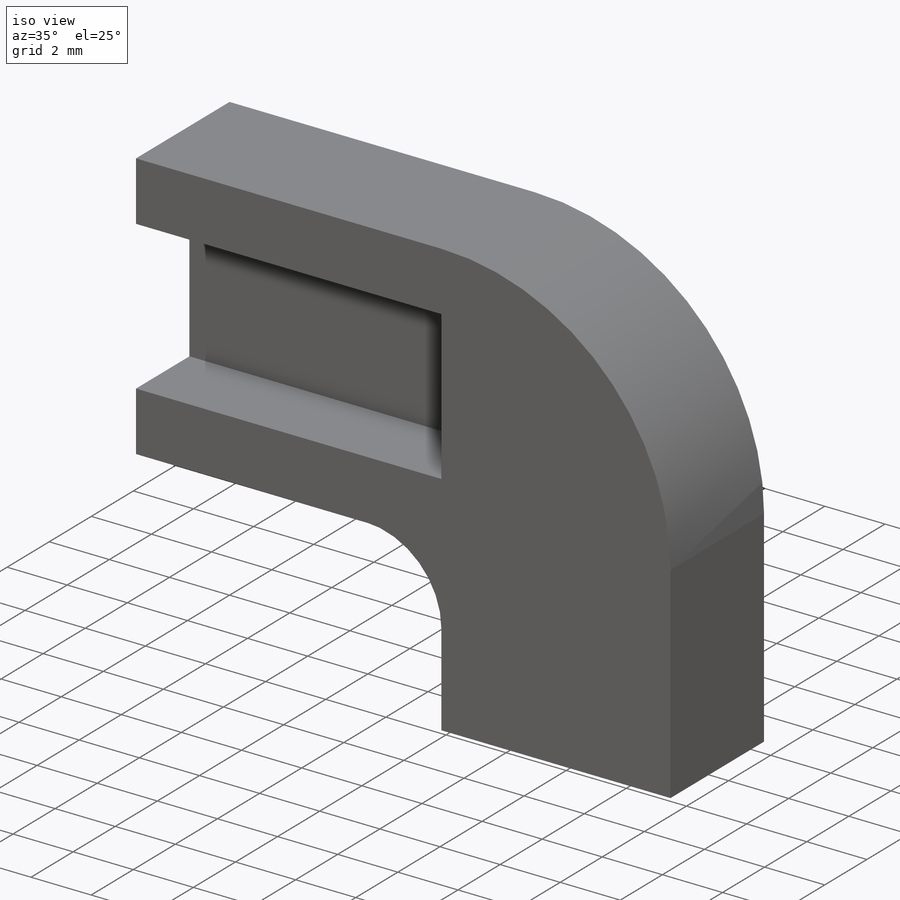
[diagram: iso view]
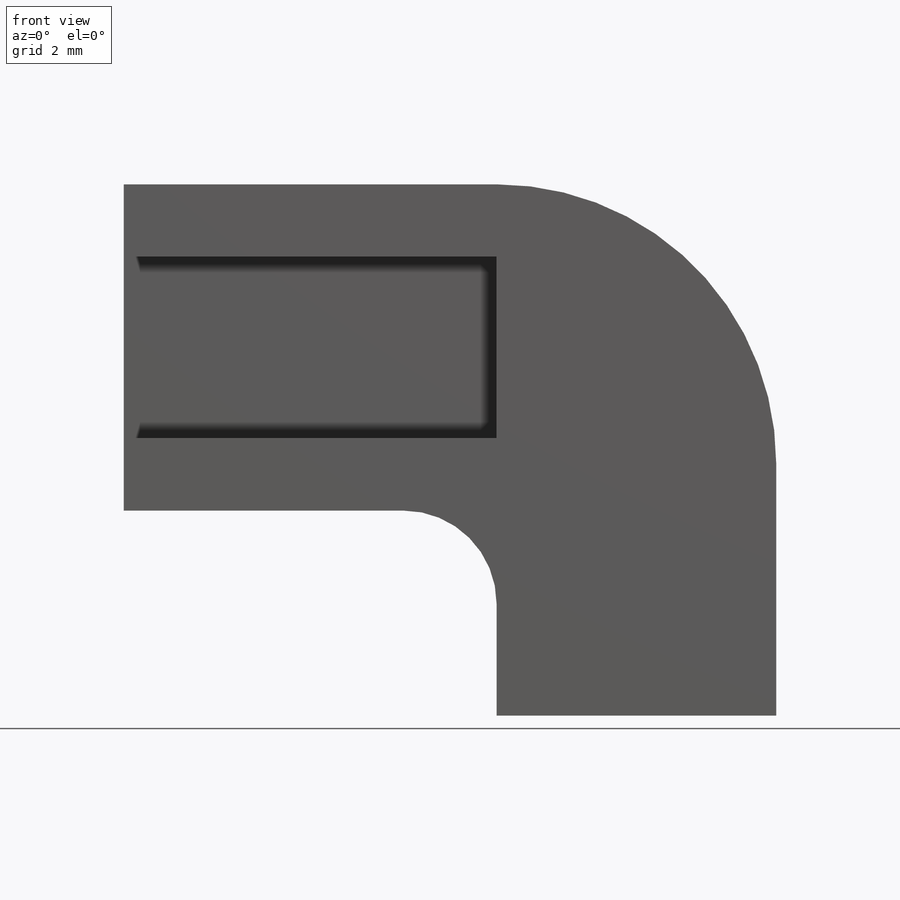
[diagram: front view]
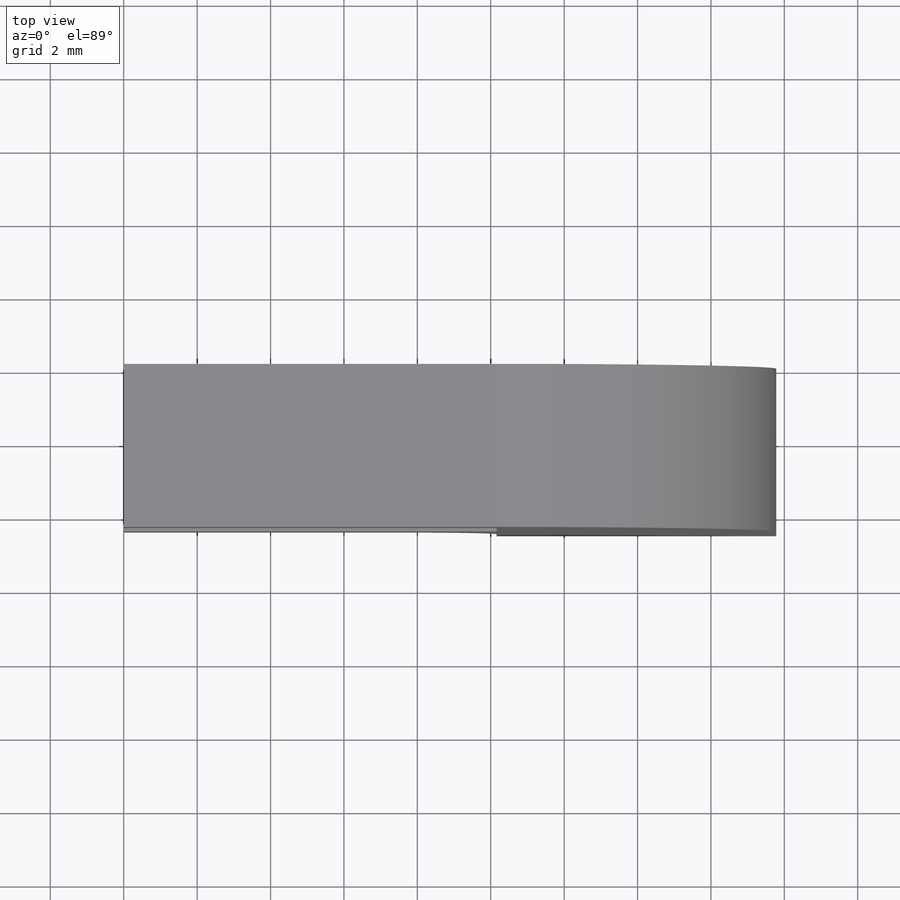
[diagram: top view]
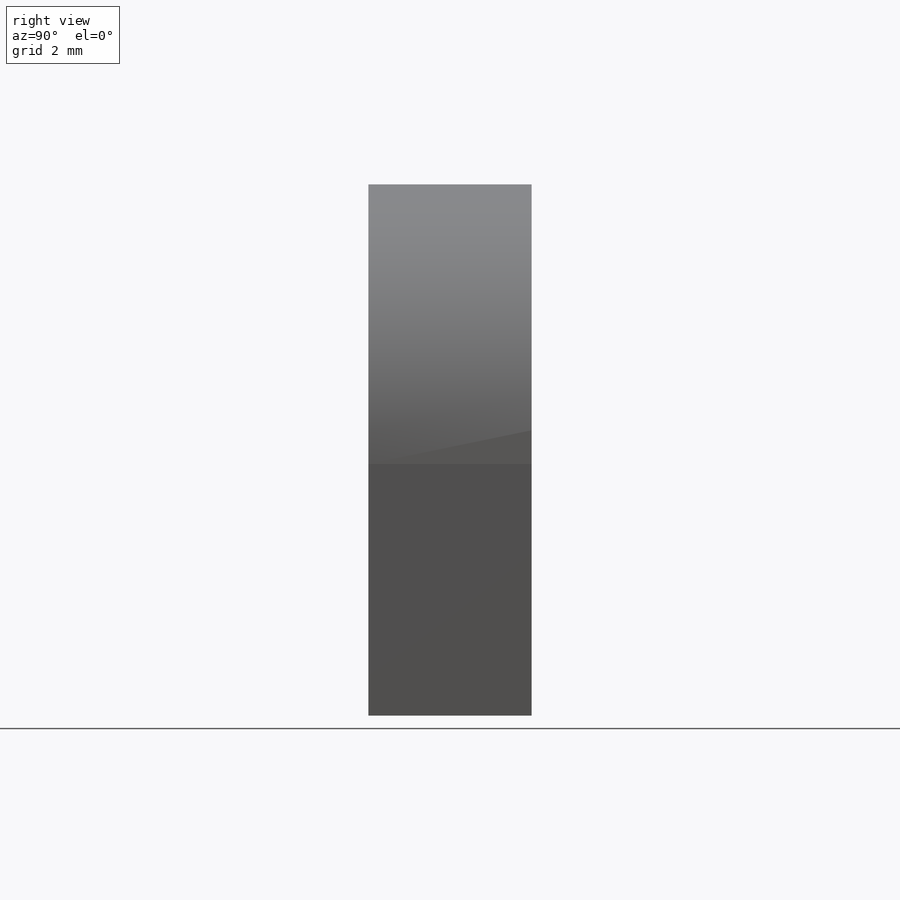
[diagram: right view]
SOLIDWORKS PART (.sldprt)
format: sldprt  version: not decoded by parser v0  size: 160,256 bytes
history: native  units: mm
features: sketch x2, fillet x2, material x1, extrude x1, cut_extrude x1 (+13 scaffold rows collapsed)
feature tree (20):
  scaffold x13  (default folders/planes/origin — collapsed)
  material  "Material <not specified>"
  sketch  "Sketch1"  dims[D1=17.78mm D2=8.89mm D3=7.62mm D4=5.588mm]
  extrude  "Boss-Extrude1"  Depth=4.445mm
  sketch  "Sketch2"  dims[D1=4.953mm D2=12.5095mm]
  cut_extrude  "Cut-Extrude1"  Depth=2.54mm
  fillet  "Fillet1"  Radius=2.54mm
  fillet  "Fillet2"  Radius=7.62mm
decode coverage: 6 of 6 modeling features carry decoded parameters
note: suppression state not decoded; provenance and decode notes live in map.json
